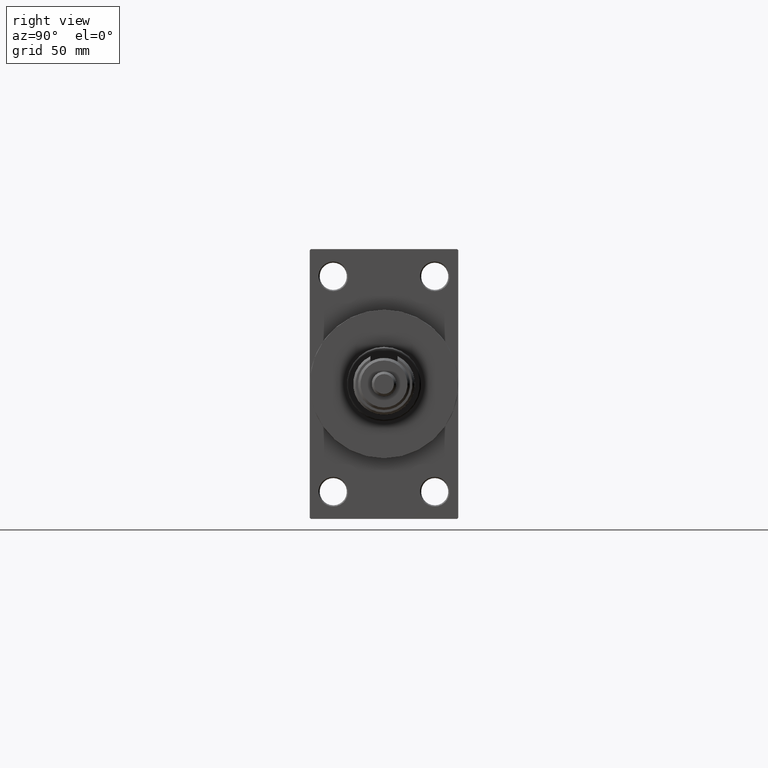
[diagram: clean part render]
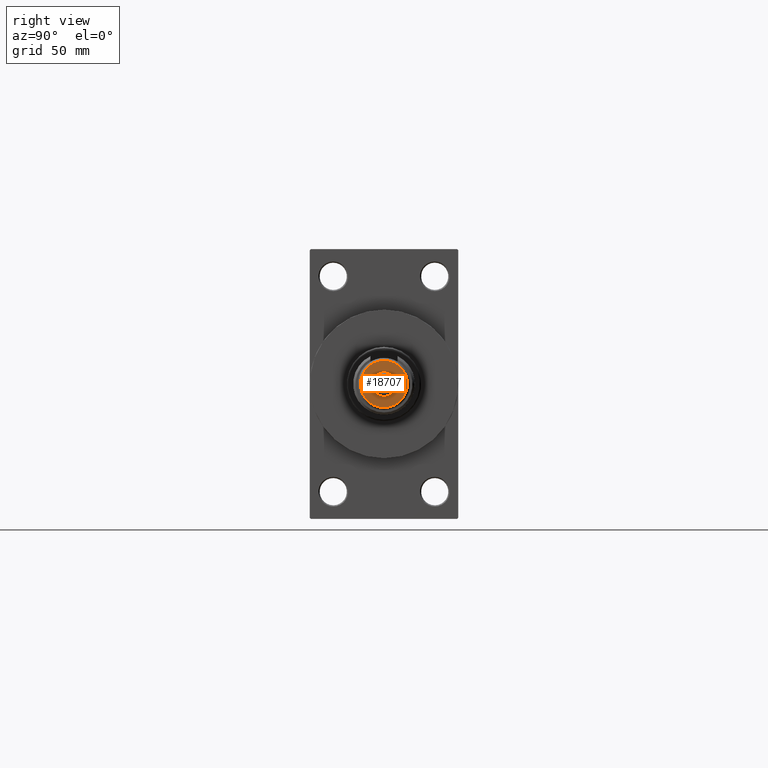
[diagram: same view with one face highlighted and labeled with its STEP entity id]
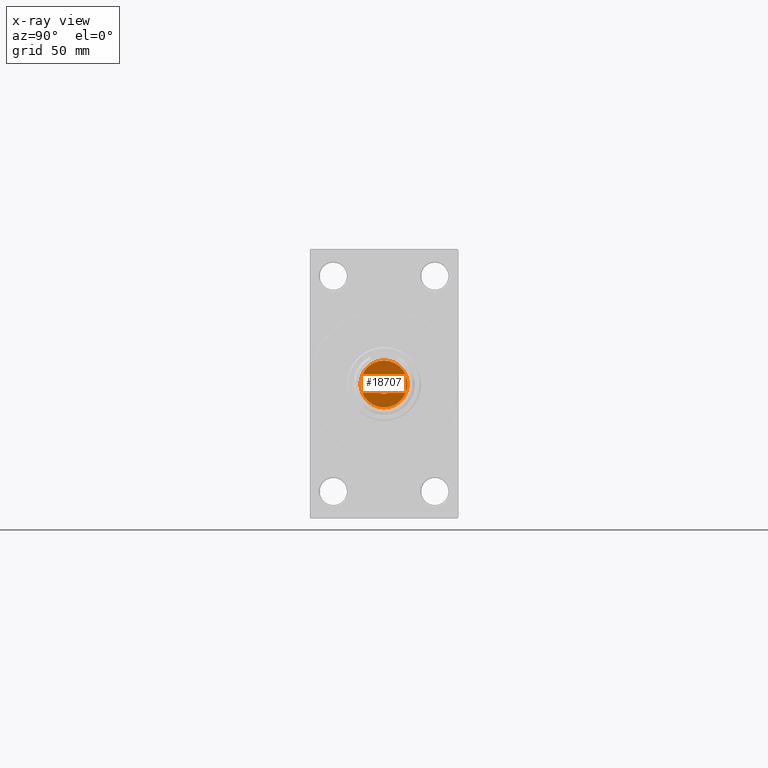
[diagram: x-ray of the same camera — body ghosted, the highlighted face saturated]
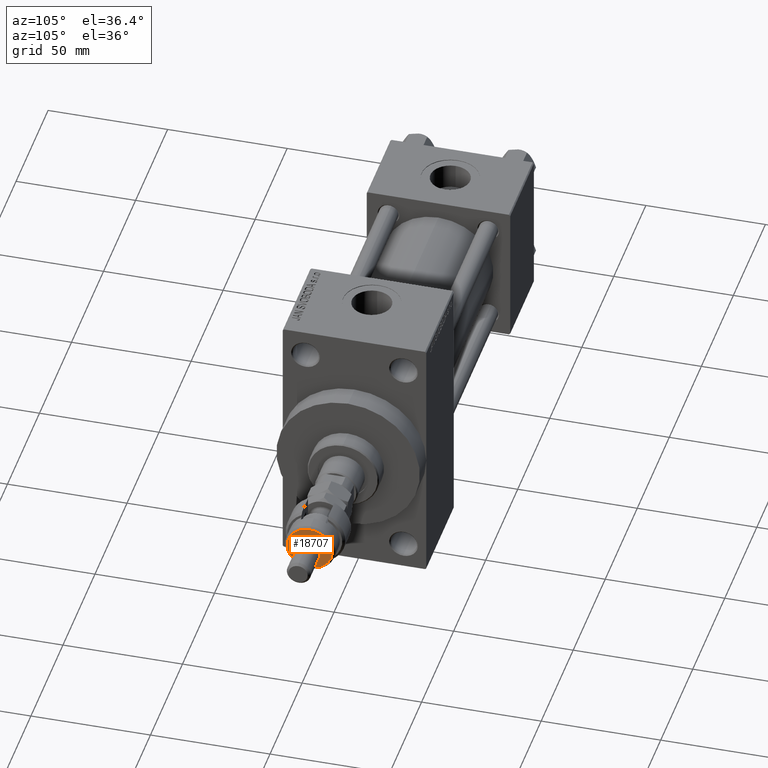
[diagram: same view with one face highlighted and labeled with its STEP entity id]
A machine part, right view. The second image highlights one B-rep face of the part: STEP entity #18707.
The next image is the same camera in x-ray: the body ghosted, the highlighted face saturated — about 0% of this face is hidden behind the body in this view.
A second angle (auxiliary view) of the same face is appended — the face is thin or edge-on in the first view.
In plain terms, the highlighted planar face has unit normal (1, 0, 0).
Its self-contained STEP definition (entity closure, byte-faithful):
#278 = FACE_OUTER_BOUND ( 'NONE', #1831, .T. ) ;
#589 = AXIS2_PLACEMENT_3D ( 'NONE', #48502, #26229, #6766 ) ;
#1831 = EDGE_LOOP ( 'NONE', ( #45472, #21360 ) ) ;
#4026 = AXIS2_PLACEMENT_3D ( 'NONE', #48224, #9771, #40660 ) ;
#6168 = CARTESIAN_POINT ( 'NONE',  ( 0.000000000000000000, 0.000000000000000000, 19.00000000000000000 ) ) ;
#6766 = DIRECTION ( 'NONE',  ( 1.000000000000000000, 0.000000000000000000, 0.000000000000000000 ) ) ;
#8149 = CIRCLE ( 'NONE', #16250, 4.000000000000000000 ) ;
#9771 = DIRECTION ( 'NONE',  ( 0.000000000000000000, 0.000000000000000000, 1.000000000000000000 ) ) ;
#14019 = DIRECTION ( 'NONE',  ( 0.000000000000000000, 0.000000000000000000, 1.000000000000000000 ) ) ;
#14767 = FACE_BOUND ( 'NONE', #46961, .T. ) ;
#15957 = DIRECTION ( 'NONE',  ( 0.000000000000000000, 0.000000000000000000, 1.000000000000000000 ) ) ;
#16250 = AXIS2_PLACEMENT_3D ( 'NONE', #17848, #22138, #49480 ) ;
#17848 = CARTESIAN_POINT ( 'NONE',  ( 0.000000000000000000, 0.000000000000000000, 19.00000000000000000 ) ) ;
#18292 = PLANE ( 'NONE',  #23270 ) ;
#18707 = ADVANCED_FACE ( 'NONE', ( #278, #14767 ), #18292, .T. ) ;
#21360 = ORIENTED_EDGE ( 'NONE', *, *, #33497, .T. ) ;
#22117 = EDGE_CURVE ( 'NONE', #27884, #45464, #33939, .T. ) ;
#22138 = DIRECTION ( 'NONE',  ( 0.000000000000000000, 0.000000000000000000, 1.000000000000000000 ) ) ;
#23270 = AXIS2_PLACEMENT_3D ( 'NONE', #33748, #15957, #31144 ) ;
#24302 = EDGE_CURVE ( 'NONE', #45464, #27884, #8149, .T. ) ;
#25633 = DIRECTION ( 'NONE',  ( 1.000000000000000000, 0.000000000000000000, 0.000000000000000000 ) ) ;
#26229 = DIRECTION ( 'NONE',  ( 0.000000000000000000, 0.000000000000000000, 1.000000000000000000 ) ) ;
#26373 = CARTESIAN_POINT ( 'NONE',  ( 4.000000000000000000, 4.898587196589412829E-16, 19.00000000000000000 ) ) ;
#27884 = VERTEX_POINT ( 'NONE', #41404 ) ;
#29485 = ORIENTED_EDGE ( 'NONE', *, *, #24302, .F. ) ;
#29989 = VERTEX_POINT ( 'NONE', #46441 ) ;
#31144 = DIRECTION ( 'NONE',  ( 1.000000000000000000, 0.000000000000000000, -0.000000000000000000 ) ) ;
#33497 = EDGE_CURVE ( 'NONE', #29989, #33901, #43253, .T. ) ;
#33748 = CARTESIAN_POINT ( 'NONE',  ( 0.000000000000000000, 0.000000000000000000, 19.00000000000000000 ) ) ;
#33901 = VERTEX_POINT ( 'NONE', #37682 ) ;
#33939 = CIRCLE ( 'NONE', #4026, 4.000000000000000000 ) ;
#37682 = CARTESIAN_POINT ( 'NONE',  ( -9.500000000000001776, 0.000000000000000000, 19.00000000000000000 ) ) ;
#40660 = DIRECTION ( 'NONE',  ( 1.000000000000000000, 0.000000000000000000, 0.000000000000000000 ) ) ;
#41204 = EDGE_CURVE ( 'NONE', #33901, #29989, #48242, .T. ) ;
#41404 = CARTESIAN_POINT ( 'NONE',  ( -4.000000000000000000, 0.000000000000000000, 19.00000000000000000 ) ) ;
#43253 = CIRCLE ( 'NONE', #44074, 9.500000000000001776 ) ;
#44014 = ORIENTED_EDGE ( 'NONE', *, *, #22117, .F. ) ;
#44074 = AXIS2_PLACEMENT_3D ( 'NONE', #6168, #14019, #25633 ) ;
#45464 = VERTEX_POINT ( 'NONE', #26373 ) ;
#45472 = ORIENTED_EDGE ( 'NONE', *, *, #41204, .T. ) ;
#46441 = CARTESIAN_POINT ( 'NONE',  ( 9.500000000000001776, 1.224646799147353256E-15, 19.00000000000000000 ) ) ;
#46961 = EDGE_LOOP ( 'NONE', ( #44014, #29485 ) ) ;
#48224 = CARTESIAN_POINT ( 'NONE',  ( 0.000000000000000000, 0.000000000000000000, 19.00000000000000000 ) ) ;
#48242 = CIRCLE ( 'NONE', #589, 9.500000000000001776 ) ;
#48502 = CARTESIAN_POINT ( 'NONE',  ( 0.000000000000000000, 0.000000000000000000, 19.00000000000000000 ) ) ;
#49480 = DIRECTION ( 'NONE',  ( 1.000000000000000000, 0.000000000000000000, 0.000000000000000000 ) ) ;